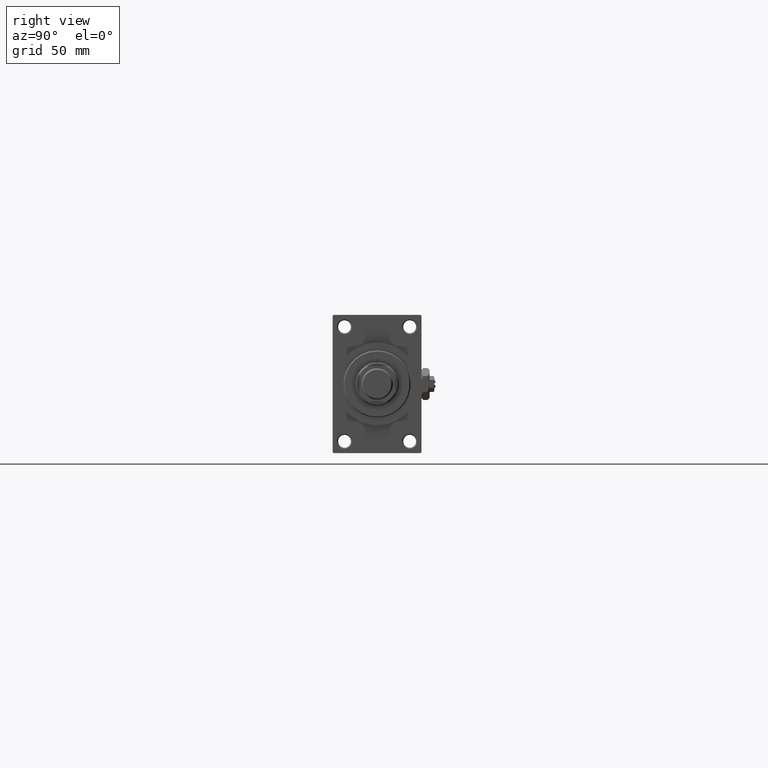
[diagram: clean part render]
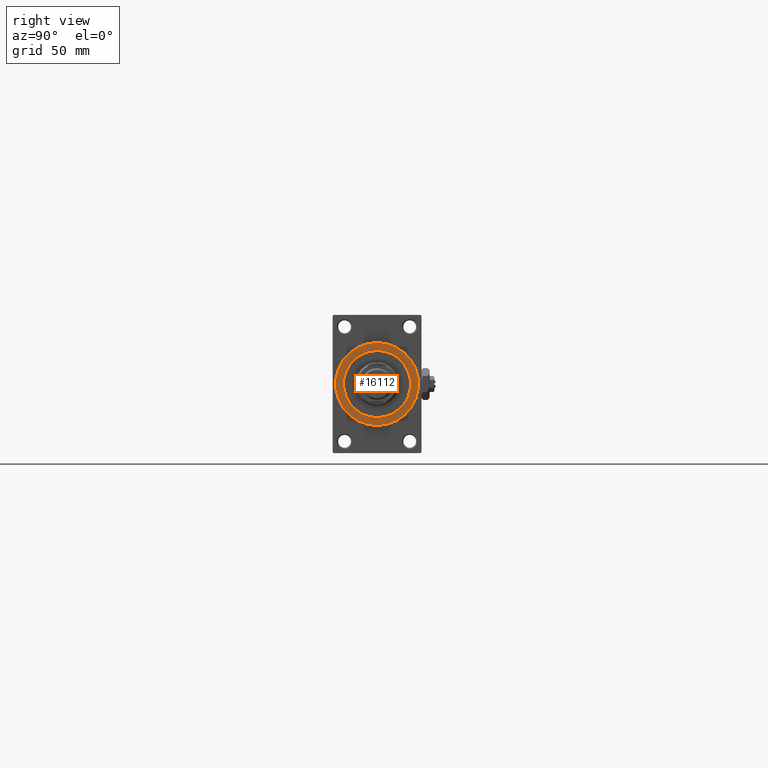
[diagram: same view with one face highlighted and labeled with its STEP entity id]
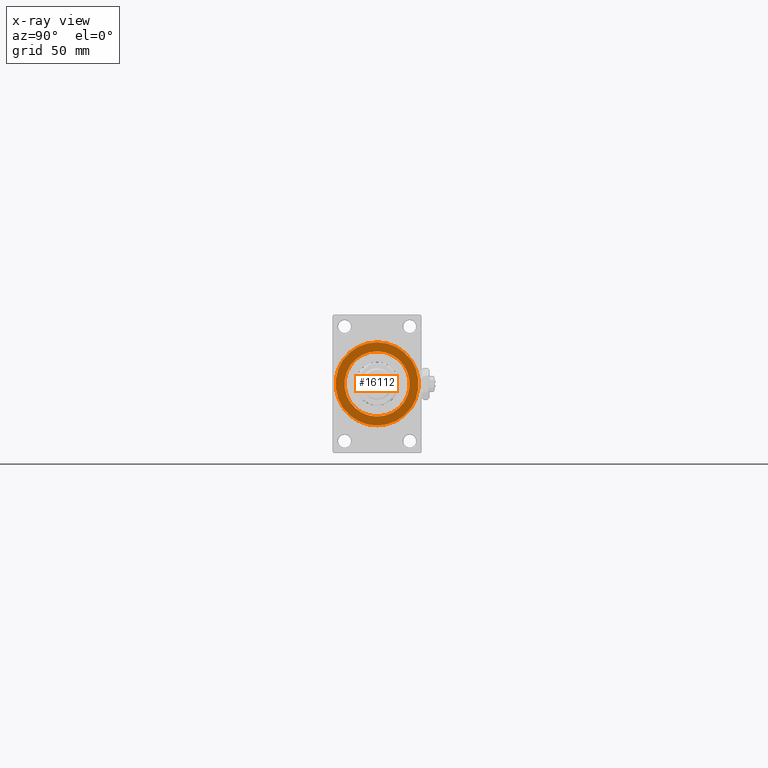
[diagram: x-ray of the same camera — body ghosted, the highlighted face saturated]
A machine part, right view. The second image highlights one B-rep face of the part: STEP entity #16112.
The next image is the same camera in x-ray: the body ghosted, the highlighted face saturated — about 0% of this face is hidden behind the body in this view.
In plain terms, the highlighted planar face has unit normal (1, 0, 0).
Its self-contained STEP definition (entity closure, byte-faithful):
#391 = CARTESIAN_POINT ( 'NONE',  ( 303.0000000000000000, 0.000000000000000000, -16.50000000000000000 ) ) ;
#814 = CARTESIAN_POINT ( 'NONE',  ( 303.0000000000000000, 0.000000000000000000, 0.000000000000000000 ) ) ;
#981 = VERTEX_POINT ( 'NONE', #391 ) ;
#1051 = AXIS2_PLACEMENT_3D ( 'NONE', #7345, #44723, #34153 ) ;
#2063 = EDGE_LOOP ( 'NONE', ( #25621, #23124 ) ) ;
#2427 = VERTEX_POINT ( 'NONE', #26270 ) ;
#2591 = DIRECTION ( 'NONE',  ( 1.000000000000000000, 0.000000000000000000, 0.000000000000000000 ) ) ;
#3564 = AXIS2_PLACEMENT_3D ( 'NONE', #39681, #2591, #21160 ) ;
#4244 = AXIS2_PLACEMENT_3D ( 'NONE', #814, #28819, #44098 ) ;
#5933 = EDGE_CURVE ( 'NONE', #2427, #981, #8261, .T. ) ;
#6262 = ORIENTED_EDGE ( 'NONE', *, *, #44202, .T. ) ;
#7345 = CARTESIAN_POINT ( 'NONE',  ( 303.0000000000000000, 0.000000000000000000, 0.000000000000000000 ) ) ;
#8261 = CIRCLE ( 'NONE', #33105, 16.50000000000000000 ) ;
#15068 = EDGE_LOOP ( 'NONE', ( #6262, #19694 ) ) ;
#15856 = CIRCLE ( 'NONE', #43879, 16.50000000000000000 ) ;
#16112 = ADVANCED_FACE ( 'NONE', ( #46453, #16652 ), #24403, .T. ) ;
#16652 = FACE_OUTER_BOUND ( 'NONE', #15068, .T. ) ;
#17430 = VERTEX_POINT ( 'NONE', #39572 ) ;
#19472 = CARTESIAN_POINT ( 'NONE',  ( 303.0000000000000000, 0.000000000000000000, 0.000000000000000000 ) ) ;
#19694 = ORIENTED_EDGE ( 'NONE', *, *, #36831, .T. ) ;
#21160 = DIRECTION ( 'NONE',  ( 0.000000000000000000, 0.000000000000000000, -1.000000000000000000 ) ) ;
#21597 = DIRECTION ( 'NONE',  ( 0.000000000000000000, 0.000000000000000000, -1.000000000000000000 ) ) ;
#23124 = ORIENTED_EDGE ( 'NONE', *, *, #5933, .F. ) ;
#24403 = PLANE ( 'NONE',  #3564 ) ;
#25621 = ORIENTED_EDGE ( 'NONE', *, *, #28276, .F. ) ;
#26270 = CARTESIAN_POINT ( 'NONE',  ( 303.0000000000000000, 2.020667218593133100E-15, 16.50000000000000000 ) ) ;
#26722 = DIRECTION ( 'NONE',  ( 1.000000000000000000, 0.000000000000000000, 0.000000000000000000 ) ) ;
#28276 = EDGE_CURVE ( 'NONE', #981, #2427, #15856, .T. ) ;
#28819 = DIRECTION ( 'NONE',  ( 1.000000000000000000, 0.000000000000000000, 0.000000000000000000 ) ) ;
#29082 = CIRCLE ( 'NONE', #1051, 21.00000000000000000 ) ;
#33105 = AXIS2_PLACEMENT_3D ( 'NONE', #19472, #26722, #35222 ) ;
#33353 = DIRECTION ( 'NONE',  ( 1.000000000000000000, 0.000000000000000000, 0.000000000000000000 ) ) ;
#34153 = DIRECTION ( 'NONE',  ( 0.000000000000000000, 0.000000000000000000, -1.000000000000000000 ) ) ;
#35222 = DIRECTION ( 'NONE',  ( 0.000000000000000000, 0.000000000000000000, -1.000000000000000000 ) ) ;
#35861 = CARTESIAN_POINT ( 'NONE',  ( 303.0000000000000000, 0.000000000000000000, 0.000000000000000000 ) ) ;
#36831 = EDGE_CURVE ( 'NONE', #44539, #17430, #29082, .T. ) ;
#38285 = CARTESIAN_POINT ( 'NONE',  ( 303.0000000000000000, 2.571758278209441661E-15, -21.00000000000000000 ) ) ;
#39572 = CARTESIAN_POINT ( 'NONE',  ( 303.0000000000000000, 0.000000000000000000, 21.00000000000000000 ) ) ;
#39681 = CARTESIAN_POINT ( 'NONE',  ( 303.0000000000000000, 0.000000000000000000, 0.000000000000000000 ) ) ;
#43879 = AXIS2_PLACEMENT_3D ( 'NONE', #35861, #33353, #21597 ) ;
#44098 = DIRECTION ( 'NONE',  ( 0.000000000000000000, 0.000000000000000000, -1.000000000000000000 ) ) ;
#44202 = EDGE_CURVE ( 'NONE', #17430, #44539, #44290, .T. ) ;
#44290 = CIRCLE ( 'NONE', #4244, 21.00000000000000000 ) ;
#44539 = VERTEX_POINT ( 'NONE', #38285 ) ;
#44723 = DIRECTION ( 'NONE',  ( 1.000000000000000000, 0.000000000000000000, 0.000000000000000000 ) ) ;
#46453 = FACE_BOUND ( 'NONE', #2063, .T. ) ;